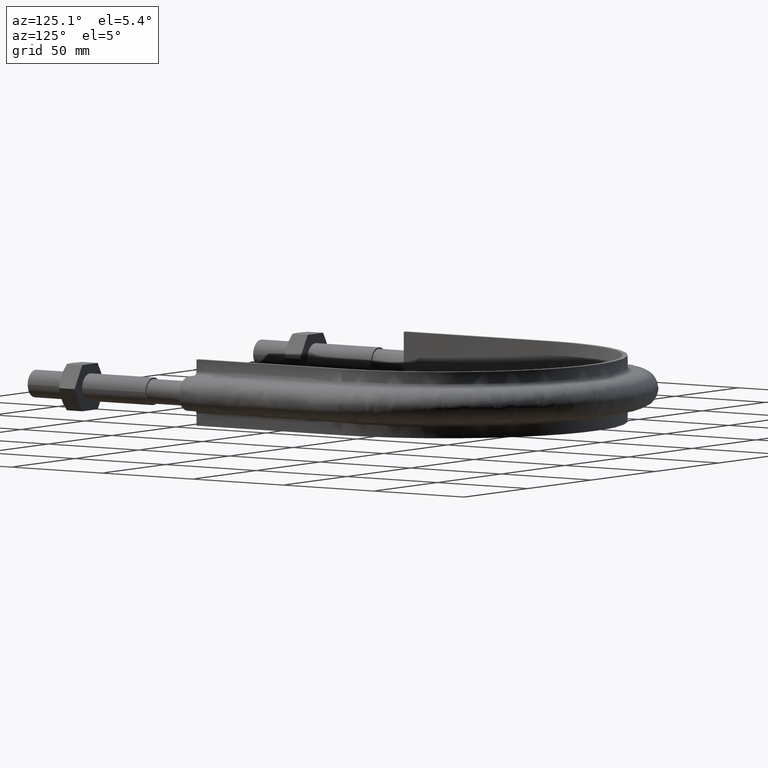
[diagram: clean part render]
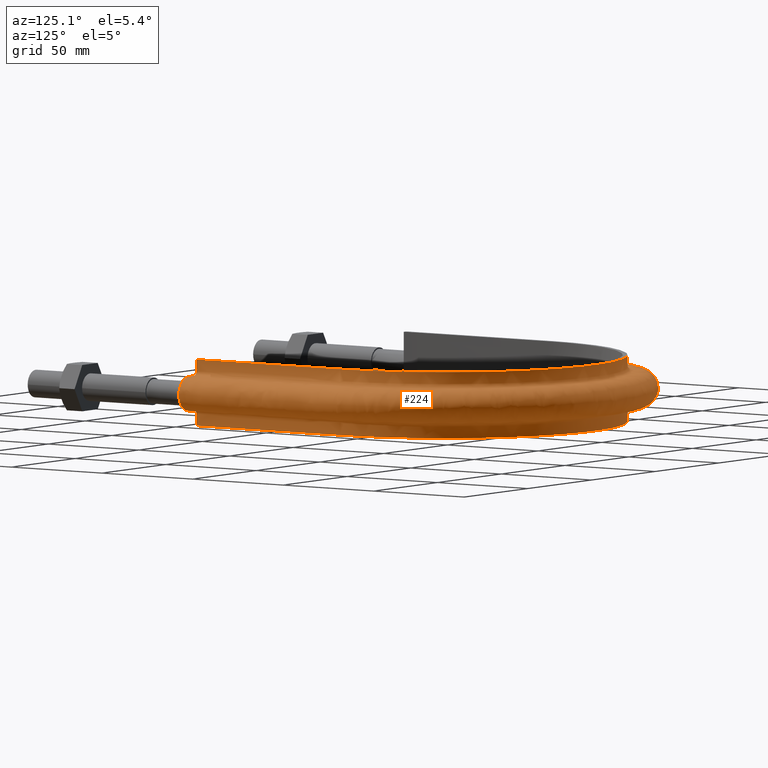
[diagram: same view with one face highlighted and labeled with its STEP entity id]
A machine part, auxiliary view. The second image highlights one B-rep face of the part: STEP entity #224.
In plain terms, the highlighted face is a freeform B-spline surface patch.
Its self-contained STEP definition (entity closure, byte-faithful):
#224 = ADVANCED_FACE( '', ( #272 ), #273, .F. );
#272 = FACE_OUTER_BOUND( '', #375, .T. );
#273 = B_SPLINE_SURFACE_WITH_KNOTS( '', 3, 3, ( ( #376, #377, #378, #379, #380, #381, #382, #383, #384, #385, #386, #387, #388, #389, #390, #391, #392, #393 ), ( #394, #395, #396, #397, #398, #399, #400, #401, #402, #403, #404, #405, #406, #407, #408, #409, #410, #411 ), ( #412, #413, #414, #415, #416, #417, #418, #419, #420, #421, #422, #423, #424, #425, #426, #427, #428, #429 ), ( #430, #431, #432, #433, #434, #435, #436, #437, #438, #439, #440, #441, #442, #443, #444, #445, #446, #447 ), ( #448, #449, #450, #451, #452, #453, #454, #455, #456, #457, #458, #459, #460, #461, #462, #463, #464, #465 ), ( #466, #467, #468, #469, #470, #471, #472, #473, #474, #475, #476, #477, #478, #479, #480, #481, #482, #483 ), ( #484, #485, #486, #487, #488, #489, #490, #491, #492, #493, #494, #495, #496, #497, #498, #499, #500, #501 ), ( #502, #503, #504, #505, #506, #507, #508, #509, #510, #511, #512, #513, #514, #515, #516, #517, #518, #519 ), ( #520, #521, #522, #523, #524, #525, #526, #527, #528, #529, #530, #531, #532, #533, #534, #535, #536, #537 ), ( #538, #539, #540, #541, #542, #543, #544, #545, #546, #547, #548, #549, #550, #551, #552, #553, #554, #555 ), ( #556, #557, #558, #559, #560, #561, #562, #563, #564, #565, #566, #567, #568, #569, #570, #571, #572, #573 ), ( #574, #575, #576, #577, #578, #579, #580, #581, #582, #583, #584, #585, #586, #587, #588, #589, #590, #591 ), ( #592, #593, #594, #595, #596, #597, #598, #599, #600, #601, #602, #603, #604, #605, #606, #607, #608, #609 ), ( #610, #611, #612, #613, #614, #615, #616, #617, #618, #619, #620, #621, #622, #623, #624, #625, #626, #627 ), ( #628, #629, #630, #631, #632, #633, #634, #635, #636, #637, #638, #639, #640, #641, #642, #643, #644, #645 ), ( #646, #647, #648, #649, #650, #651, #652, #653, #654, #655, #656, #657, #658, #659, #660, #661, #662, #663 ), ( #664, #665, #666, #667, #668, #669, #670, #671, #672, #673, #674, #675, #676, #677, #678, #679, #680, #681 ), ( #682, #683, #684, #685, #686, #687, #688, #689, #690, #691, #692, #693, #694, #695, #696, #697, #698, #699 ), ( #700, #701, #702, #703, #704, #705, #706, #707, #708, #709, #710, #711, #712, #713, #714, #715, #716, #717 ), ( #718, #719, #720, #721, #722, #723, #724, #725, #726, #727, #728, #729, #730, #731, #732, #733, #734, #735 ), ( #736, #737, #738, #739, #740, #741, #742, #743, #744, #745, #746, #747, #748, #749, #750, #751, #752, #753 ), ( #754, #755, #756, #757, #758, #759, #760, #761, #762, #763, #764, #765, #766, #767, #768, #769, #770, #771 ), ( #772, #773, #774, #775, #776, #777, #778, #779, #780, #781, #782, #783, #784, #785, #786, #787, #788, #789 ), ( #790, #791, #792, #793, #794, #795, #796, #797, #798, #799, #800, #801, #802, #803, #804, #805, #806, #807 ), ( #808, #809, #810, #811, #812, #813, #814, #815, #816, #817, #818, #819, #820, #821, #822, #823, #824, #825 ), ( #826, #827, #828, #829, #830, #831, #832, #833, #834, #835, #836, #837, #838, #839, #840, #841, #842, #843 ), ( #844, #845, #846, #847, #848, #849, #850, #851, #852, #853, #854, #855, #856, #857, #858, #859, #860, #861 ), ( #862, #863, #864, #865, #866, #867, #868, #869, #870, #871, #872, #873, #874, #875, #876, #877, #878, #879 ), ( #880, #881, #882, #883, #884, #885, #886, #887, #888, #889, #890, #891, #892, #893, #894, #895, #896, #897 ), ( #898, #899, #900, #901, #902, #903, #904, #905, #906, #907, #908, #909, #910, #911, #912, #913, #914, #915 ), ( #916, #917, #918, #919, #920, #921, #922, #923, #924, #925, #926, #927, #928, #929, #930, #931, #932, #933 ) ), .UNSPECIFIED., .F., .F., .F., ( 4, 3, 1, 1, 1, 3, 3, 1, 1, 1, 3, 3, 1, 1, 1, 3, 4 ), ( 4, 3, 1, 1, 1, 1, 1, 1, 1, 1, 3, 4 ), ( 0.105263157894737, 0.157894736842105, 0.210526315789474, 0.263157894736842, 0.315789473684211, 0.368421052631579, 0.421052631578947, 0.473684210526316, 0.526315789473684, 0.578947368421053, 0.631578947368421, 0.684210526315789, 0.736842105263158, 0.789473684210526, 0.842105263157895, 0.894736842105263, 0.947368421052632 ), ( 0.000000000000000, 1.00000000000000, 1.50000000000000, 2.00000000000000, 3.00000000000000, 4.00000000000000, 5.00000000000000, 6.00000000000000, 7.00000000000000, 7.50000000000000, 8.00000000000000, 9.00000000000000 ), .UNSPECIFIED. );
#375 = EDGE_LOOP( '', ( #1427, #1428, #1429, #1430 ) );
#376 = CARTESIAN_POINT( '', ( 82.4500000000000, 84.5000000000000, -15.0000000000000 ) );
#377 = CARTESIAN_POINT( '', ( 82.4500000000000, 110.920000000000, -15.0000000000000 ) );
#378 = CARTESIAN_POINT( '', ( 82.4500000000000, 137.340000000000, -15.0000000000000 ) );
#379 = CARTESIAN_POINT( '', ( 82.4500000000000, 163.760000000000, -15.0000000000000 ) );
#380 = CARTESIAN_POINT( '', ( 82.4500000000000, 169.917965282921, -15.0000000000000 ) );
#381 = CARTESIAN_POINT( '', ( 81.0415063471974, 182.260747551918, -15.0000000000000 ) );
#382 = CARTESIAN_POINT( '', ( 72.8782592641098, 205.697642595926, -15.0000000000000 ) );
#383 = CARTESIAN_POINT( '', ( 53.1613822653425, 230.423193230709, -15.0000000000000 ) );
#384 = CARTESIAN_POINT( '', ( 18.9732412542822, 246.886728985128, -15.0000000000000 ) );
#385 = CARTESIAN_POINT( '', ( -18.9732412542821, 246.886728985128, -15.0000000000000 ) );
#386 = CARTESIAN_POINT( '', ( -53.1613822653425, 230.423193230709, -15.0000000000000 ) );
#387 = CARTESIAN_POINT( '', ( -72.8782592641097, 205.697642595927, -15.0000000000000 ) );
#388 = CARTESIAN_POINT( '', ( -81.0415063471973, 182.260747551918, -15.0000000000000 ) );
#389 = CARTESIAN_POINT( '', ( -82.4500000000000, 169.917965282921, -15.0000000000000 ) );
#390 = CARTESIAN_POINT( '', ( -82.4500000000000, 163.760000000000, -15.0000000000000 ) );
#391 = CARTESIAN_POINT( '', ( -82.4500000000000, 137.340000000000, -15.0000000000000 ) );
#392 = CARTESIAN_POINT( '', ( -82.4500000000000, 110.920000000000, -15.0000000000000 ) );
#393 = CARTESIAN_POINT( '', ( -82.4500000000000, 84.5000000000001, -15.0000000000000 ) );
#394 = CARTESIAN_POINT( '', ( 82.4500000000000, 84.5000000000000, -13.2666666666667 ) );
#395 = CARTESIAN_POINT( '', ( 82.4500000000000, 110.920000000000, -13.2666666666667 ) );
#396 = CARTESIAN_POINT( '', ( 82.4500000000000, 137.340000000000, -13.2666666666667 ) );
#397 = CARTESIAN_POINT( '', ( 82.4500000000000, 163.760000000000, -13.2666666666667 ) );
#398 = CARTESIAN_POINT( '', ( 82.4500000000000, 169.917965282921, -13.2666666666667 ) );
#399 = CARTESIAN_POINT( '', ( 81.0415063471974, 182.260747551918, -13.2666666666667 ) );
#400 = CARTESIAN_POINT( '', ( 72.8782592641098, 205.697642595926, -13.2666666666667 ) );
#401 = CARTESIAN_POINT( '', ( 53.1613822653425, 230.423193230709, -13.2666666666667 ) );
#402 = CARTESIAN_POINT( '', ( 18.9732412542822, 246.886728985128, -13.2666666666667 ) );
#403 = CARTESIAN_POINT( '', ( -18.9732412542821, 246.886728985128, -13.2666666666667 ) );
#404 = CARTESIAN_POINT( '', ( -53.1613822653425, 230.423193230709, -13.2666666666667 ) );
#405 = CARTESIAN_POINT( '', ( -72.8782592641097, 205.697642595927, -13.2666666666667 ) );
#406 = CARTESIAN_POINT( '', ( -81.0415063471973, 182.260747551918, -13.2666666666667 ) );
#407 = CARTESIAN_POINT( '', ( -82.4500000000000, 169.917965282921, -13.2666666666667 ) );
#408 = CARTESIAN_POINT( '', ( -82.4500000000000, 163.760000000000, -13.2666666666667 ) );
#409 = CARTESIAN_POINT( '', ( -82.4500000000000, 137.340000000000, -13.2666666666667 ) );
#410 = CARTESIAN_POINT( '', ( -82.4500000000000, 110.920000000000, -13.2666666666667 ) );
#411 = CARTESIAN_POINT( '', ( -82.4500000000000, 84.5000000000001, -13.2666666666667 ) );
#412 = CARTESIAN_POINT( '', ( 82.4500000000000, 84.5000000000000, -11.5333333333333 ) );
#413 = CARTESIAN_POINT( '', ( 82.4500000000000, 110.920000000000, -11.5333333333333 ) );
#414 = CARTESIAN_POINT( '', ( 82.4500000000000, 137.340000000000, -11.5333333333333 ) );
#415 = CARTESIAN_POINT( '', ( 82.4500000000000, 163.760000000000, -11.5333333333333 ) );
#416 = CARTESIAN_POINT( '', ( 82.4500000000000, 169.917965282921, -11.5333333333333 ) );
#417 = CARTESIAN_POINT( '', ( 81.0415063471974, 182.260747551918, -11.5333333333333 ) );
#418 = CARTESIAN_POINT( '', ( 72.8782592641098, 205.697642595927, -11.5333333333334 ) );
#419 = CARTESIAN_POINT( '', ( 53.1613822653425, 230.423193230709, -11.5333333333333 ) );
#420 = CARTESIAN_POINT( '', ( 18.9732412542822, 246.886728985128, -11.5333333333333 ) );
#421 = CARTESIAN_POINT( '', ( -18.9732412542821, 246.886728985128, -11.5333333333333 ) );
#422 = CARTESIAN_POINT( '', ( -53.1613822653425, 230.423193230709, -11.5333333333333 ) );
#423 = CARTESIAN_POINT( '', ( -72.8782592641097, 205.697642595927, -11.5333333333333 ) );
#424 = CARTESIAN_POINT( '', ( -81.0415063471973, 182.260747551918, -11.5333333333333 ) );
#425 = CARTESIAN_POINT( '', ( -82.4500000000000, 169.917965282921, -11.5333333333333 ) );
#426 = CARTESIAN_POINT( '', ( -82.4500000000000, 163.760000000000, -11.5333333333333 ) );
#427 = CARTESIAN_POINT( '', ( -82.4500000000000, 137.340000000000, -11.5333333333333 ) );
#428 = CARTESIAN_POINT( '', ( -82.4500000000000, 110.920000000000, -11.5333333333333 ) );
#429 = CARTESIAN_POINT( '', ( -82.4500000000000, 84.5000000000001, -11.5333333333333 ) );
#430 = CARTESIAN_POINT( '', ( 82.4500000000000, 84.5000000000000, -9.79999999999999 ) );
#431 = CARTESIAN_POINT( '', ( 82.4500000000000, 110.920000000000, -9.79999999999999 ) );
#432 = CARTESIAN_POINT( '', ( 82.4500000000000, 137.340000000000, -9.79999999999999 ) );
#433 = CARTESIAN_POINT( '', ( 82.4500000000000, 163.760000000000, -9.79999999999999 ) );
#434 = CARTESIAN_POINT( '', ( 82.4500000000000, 169.917965282921, -9.79999999999999 ) );
#435 = CARTESIAN_POINT( '', ( 81.0415063471974, 182.260747551918, -9.79999999999999 ) );
#436 = CARTESIAN_POINT( '', ( 72.8782592641098, 205.697642595927, -9.80000000000001 ) );
#437 = CARTESIAN_POINT( '', ( 53.1613822653425, 230.423193230709, -9.79999999999998 ) );
#438 = CARTESIAN_POINT( '', ( 18.9732412542822, 246.886728985128, -9.79999999999999 ) );
#439 = CARTESIAN_POINT( '', ( -18.9732412542821, 246.886728985128, -9.80000000000000 ) );
#440 = CARTESIAN_POINT( '', ( -53.1613822653425, 230.423193230709, -9.79999999999999 ) );
#441 = CARTESIAN_POINT( '', ( -72.8782592641097, 205.697642595927, -9.79999999999999 ) );
#442 = CARTESIAN_POINT( '', ( -81.0415063471973, 182.260747551918, -9.79999999999999 ) );
#443 = CARTESIAN_POINT( '', ( -82.4500000000000, 169.917965282921, -9.79999999999999 ) );
#444 = CARTESIAN_POINT( '', ( -82.4500000000000, 163.760000000000, -9.79999999999999 ) );
#445 = CARTESIAN_POINT( '', ( -82.4500000000000, 137.340000000000, -9.79999999999999 ) );
#446 = CARTESIAN_POINT( '', ( -82.4500000000000, 110.920000000000, -9.79999999999999 ) );
#447 = CARTESIAN_POINT( '', ( -82.4500000000000, 84.5000000000001, -9.79999999999999 ) );
#448 = CARTESIAN_POINT( '', ( 82.4500000000000, 84.5000000000000, -9.53823584172332 ) );
#449 = CARTESIAN_POINT( '', ( 82.4500000000000, 110.920000000000, -9.53823584172332 ) );
#450 = CARTESIAN_POINT( '', ( 82.4500000000000, 137.340000000000, -9.53823584172332 ) );
#451 = CARTESIAN_POINT( '', ( 82.4500000000000, 163.760000000000, -9.53823584172332 ) );
#452 = CARTESIAN_POINT( '', ( 82.4500000000000, 169.917965282921, -9.53823584172332 ) );
#453 = CARTESIAN_POINT( '', ( 81.0415063471974, 182.260747551918, -9.53823584172332 ) );
#454 = CARTESIAN_POINT( '', ( 72.8782592641098, 205.697642595926, -9.53823584172334 ) );
#455 = CARTESIAN_POINT( '', ( 53.1613822653425, 230.423193230709, -9.53823584172331 ) );
#456 = CARTESIAN_POINT( '', ( 18.9732412542822, 246.886728985128, -9.53823584172333 ) );
#457 = CARTESIAN_POINT( '', ( -18.9732412542821, 246.886728985128, -9.53823584172333 ) );
#458 = CARTESIAN_POINT( '', ( -53.1613822653425, 230.423193230709, -9.53823584172332 ) );
#459 = CARTESIAN_POINT( '', ( -72.8782592641097, 205.697642595927, -9.53823584172332 ) );
#460 = CARTESIAN_POINT( '', ( -81.0415063471973, 182.260747551918, -9.53823584172332 ) );
#461 = CARTESIAN_POINT( '', ( -82.4500000000000, 169.917965282921, -9.53823584172332 ) );
#462 = CARTESIAN_POINT( '', ( -82.4500000000000, 163.760000000000, -9.53823584172332 ) );
#463 = CARTESIAN_POINT( '', ( -82.4500000000000, 137.340000000000, -9.53823584172332 ) );
#464 = CARTESIAN_POINT( '', ( -82.4500000000000, 110.920000000000, -9.53823584172332 ) );
#465 = CARTESIAN_POINT( '', ( -82.4500000000000, 84.5000000000001, -9.53823584172332 ) );
#466 = CARTESIAN_POINT( '', ( 82.5541362568359, 84.5000000000000, -9.01470752517000 ) );
#467 = CARTESIAN_POINT( '', ( 82.5541362568359, 110.920000000000, -9.01470752517000 ) );
#468 = CARTESIAN_POINT( '', ( 82.5541362568359, 137.340000000000, -9.01470752517000 ) );
#469 = CARTESIAN_POINT( '', ( 82.5541362568359, 163.760000000000, -9.01470752517000 ) );
#470 = CARTESIAN_POINT( '', ( 82.5541362568359, 169.925888089944, -9.01470752517000 ) );
#471 = CARTESIAN_POINT( '', ( 81.1438855386676, 182.284053785244, -9.01470752516999 ) );
#472 = CARTESIAN_POINT( '', ( 72.9702935407622, 205.750645792291, -9.01470752517001 ) );
#473 = CARTESIAN_POINT( '', ( 53.2285306995549, 230.507378724202, -9.01470752516999 ) );
#474 = CARTESIAN_POINT( '', ( 18.9972034371378, 246.991722298581, -9.01470752517000 ) );
#475 = CARTESIAN_POINT( '', ( -18.9972034371376, 246.991722298581, -9.01470752517000 ) );
#476 = CARTESIAN_POINT( '', ( -53.2285306995549, 230.507378724202, -9.01470752516999 ) );
#477 = CARTESIAN_POINT( '', ( -72.9702935407621, 205.750645792292, -9.01470752516999 ) );
#478 = CARTESIAN_POINT( '', ( -81.1438855386676, 182.284053785244, -9.01470752517000 ) );
#479 = CARTESIAN_POINT( '', ( -82.5541362568359, 169.925888089944, -9.01470752517000 ) );
#480 = CARTESIAN_POINT( '', ( -82.5541362568359, 163.760000000000, -9.01470752517000 ) );
#481 = CARTESIAN_POINT( '', ( -82.5541362568359, 137.340000000000, -9.01470752517000 ) );
#482 = CARTESIAN_POINT( '', ( -82.5541362568359, 110.920000000000, -9.01470752517000 ) );
#483 = CARTESIAN_POINT( '', ( -82.5541362568359, 84.5000000000001, -9.01470752517000 ) );
#484 = CARTESIAN_POINT( '', ( 82.9989687109389, 84.5000000000000, -8.34896871093886 ) );
#485 = CARTESIAN_POINT( '', ( 82.9989687109389, 110.920000000000, -8.34896871093886 ) );
#486 = CARTESIAN_POINT( '', ( 82.9989687109389, 137.340000000000, -8.34896871093886 ) );
#487 = CARTESIAN_POINT( '', ( 82.9989687109389, 163.760000000000, -8.34896871093886 ) );
#488 = CARTESIAN_POINT( '', ( 82.9989687109389, 169.959731458226, -8.34896871093886 ) );
#489 = CARTESIAN_POINT( '', ( 81.5812124445365, 182.383609591080, -8.34896871093886 ) );
#490 = CARTESIAN_POINT( '', ( 73.3634307092068, 205.977056291677, -8.34896871093888 ) );
#491 = CARTESIAN_POINT( '', ( 53.5153645429006, 230.866988727559, -8.34896871093885 ) );
#492 = CARTESIAN_POINT( '', ( 19.0995612223047, 247.440215788808, -8.34896871093886 ) );
#493 = CARTESIAN_POINT( '', ( -19.0995612223046, 247.440215788808, -8.34896871093886 ) );
#494 = CARTESIAN_POINT( '', ( -53.5153645429006, 230.866988727559, -8.34896871093886 ) );
#495 = CARTESIAN_POINT( '', ( -73.3634307092067, 205.977056291677, -8.34896871093886 ) );
#496 = CARTESIAN_POINT( '', ( -81.5812124445364, 182.383609591080, -8.34896871093886 ) );
#497 = CARTESIAN_POINT( '', ( -82.9989687109388, 169.959731458226, -8.34896871093886 ) );
#498 = CARTESIAN_POINT( '', ( -82.9989687109388, 163.760000000000, -8.34896871093886 ) );
#499 = CARTESIAN_POINT( '', ( -82.9989687109388, 137.340000000000, -8.34896871093886 ) );
#500 = CARTESIAN_POINT( '', ( -82.9989687109388, 110.920000000000, -8.34896871093886 ) );
#501 = CARTESIAN_POINT( '', ( -82.9989687109388, 84.5000000000001, -8.34896871093886 ) );
#502 = CARTESIAN_POINT( '', ( 83.6647075251700, 84.5000000000000, -7.90413625683589 ) );
#503 = CARTESIAN_POINT( '', ( 83.6647075251700, 110.920000000000, -7.90413625683589 ) );
#504 = CARTESIAN_POINT( '', ( 83.6647075251700, 137.340000000000, -7.90413625683589 ) );
#505 = CARTESIAN_POINT( '', ( 83.6647075251700, 163.760000000000, -7.90413625683589 ) );
#506 = CARTESIAN_POINT( '', ( 83.6647075251700, 170.010381638225, -7.90413625683589 ) );
#507 = CARTESIAN_POINT( '', ( 82.2357184120284, 182.532605383800, -7.90413625683589 ) );
#508 = CARTESIAN_POINT( '', ( 73.9518020610190, 206.315903549785, -7.90413625683591 ) );
#509 = CARTESIAN_POINT( '', ( 53.9446417257792, 231.405183130896, -7.90413625683589 ) );
#510 = CARTESIAN_POINT( '', ( 19.2527504734392, 248.111433730801, -7.90413625683590 ) );
#511 = CARTESIAN_POINT( '', ( -19.2527504734390, 248.111433730801, -7.90413625683590 ) );
#512 = CARTESIAN_POINT( '', ( -53.9446417257792, 231.405183130896, -7.90413625683589 ) );
#513 = CARTESIAN_POINT( '', ( -73.9518020610189, 206.315903549785, -7.90413625683589 ) );
#514 = CARTESIAN_POINT( '', ( -82.2357184120283, 182.532605383800, -7.90413625683590 ) );
#515 = CARTESIAN_POINT( '', ( -83.6647075251700, 170.010381638225, -7.90413625683589 ) );
#516 = CARTESIAN_POINT( '', ( -83.6647075251700, 163.760000000000, -7.90413625683589 ) );
#517 = CARTESIAN_POINT( '', ( -83.6647075251700, 137.340000000000, -7.90413625683589 ) );
#518 = CARTESIAN_POINT( '', ( -83.6647075251700, 110.920000000000, -7.90413625683589 ) );
#519 = CARTESIAN_POINT( '', ( -83.6647075251700, 84.5000000000001, -7.90413625683589 ) );
#520 = CARTESIAN_POINT( '', ( 84.1882358417233, 84.5000000000000, -7.79999999999998 ) );
#521 = CARTESIAN_POINT( '', ( 84.1882358417233, 110.920000000000, -7.79999999999998 ) );
#522 = CARTESIAN_POINT( '', ( 84.1882358417233, 137.340000000000, -7.79999999999998 ) );
#523 = CARTESIAN_POINT( '', ( 84.1882358417233, 163.760000000000, -7.79999999999998 ) );
#524 = CARTESIAN_POINT( '', ( 84.1882358417234, 170.050212278863, -7.79999999999998 ) );
#525 = CARTESIAN_POINT( '', ( 82.7504133644789, 182.649773731010, -7.79999999999998 ) );
#526 = CARTESIAN_POINT( '', ( 74.4144896146629, 206.582368612080, -7.80000000000000 ) );
#527 = CARTESIAN_POINT( '', ( 54.2822197009296, 231.828412186997, -7.79999999999997 ) );
#528 = CARTESIAN_POINT( '', ( 19.3732165016264, 248.639270761931, -7.79999999999999 ) );
#529 = CARTESIAN_POINT( '', ( -19.3732165016263, 248.639270761931, -7.79999999999999 ) );
#530 = CARTESIAN_POINT( '', ( -54.2822197009296, 231.828412186997, -7.79999999999999 ) );
#531 = CARTESIAN_POINT( '', ( -74.4144896146628, 206.582368612080, -7.79999999999998 ) );
#532 = CARTESIAN_POINT( '', ( -82.7504133644789, 182.649773731010, -7.79999999999998 ) );
#533 = CARTESIAN_POINT( '', ( -84.1882358417233, 170.050212278863, -7.79999999999998 ) );
#534 = CARTESIAN_POINT( '', ( -84.1882358417233, 163.760000000000, -7.79999999999998 ) );
#535 = CARTESIAN_POINT( '', ( -84.1882358417233, 137.340000000000, -7.79999999999998 ) );
#536 = CARTESIAN_POINT( '', ( -84.1882358417233, 110.920000000000, -7.79999999999998 ) );
#537 = CARTESIAN_POINT( '', ( -84.1882358417233, 84.5000000000001, -7.79999999999998 ) );
#538 = CARTESIAN_POINT( '', ( 84.4500000000000, 84.5000000000000, -7.79999999999998 ) );
#539 = CARTESIAN_POINT( '', ( 84.4500000000000, 110.920000000000, -7.79999999999998 ) );
#540 = CARTESIAN_POINT( '', ( 84.4500000000000, 137.340000000000, -7.79999999999998 ) );
#541 = CARTESIAN_POINT( '', ( 84.4500000000000, 163.760000000000, -7.79999999999998 ) );
#542 = CARTESIAN_POINT( '', ( 84.4500000000000, 170.070127599181, -7.79999999999998 ) );
#543 = CARTESIAN_POINT( '', ( 83.0077608407042, 182.708357904614, -7.79999999999998 ) );
#544 = CARTESIAN_POINT( '', ( 74.6458333914849, 206.715601143227, -7.80000000000000 ) );
#545 = CARTESIAN_POINT( '', ( 54.4510086885049, 232.040026715048, -7.79999999999997 ) );
#546 = CARTESIAN_POINT( '', ( 19.4334495157200, 248.903189277496, -7.79999999999999 ) );
#547 = CARTESIAN_POINT( '', ( -19.4334495157199, 248.903189277496, -7.79999999999999 ) );
#548 = CARTESIAN_POINT( '', ( -54.4510086885048, 232.040026715048, -7.79999999999998 ) );
#549 = CARTESIAN_POINT( '', ( -74.6458333914848, 206.715601143227, -7.79999999999998 ) );
#550 = CARTESIAN_POINT( '', ( -83.0077608407041, 182.708357904614, -7.79999999999998 ) );
#551 = CARTESIAN_POINT( '', ( -84.4500000000000, 170.070127599181, -7.79999999999998 ) );
#552 = CARTESIAN_POINT( '', ( -84.4500000000000, 163.760000000000, -7.79999999999998 ) );
#553 = CARTESIAN_POINT( '', ( -84.4500000000000, 137.340000000000, -7.79999999999998 ) );
#554 = CARTESIAN_POINT( '', ( -84.4500000000000, 110.920000000000, -7.79999999999998 ) );
#555 = CARTESIAN_POINT( '', ( -84.4500000000000, 84.5000000000001, -7.79999999999998 ) );
#556 = CARTESIAN_POINT( '', ( 85.8000000000000, 84.5000000000000, -7.79999999999999 ) );
#557 = CARTESIAN_POINT( '', ( 85.8000000000000, 110.920000000000, -7.79999999999999 ) );
#558 = CARTESIAN_POINT( '', ( 85.8000000000000, 137.340000000000, -7.79999999999999 ) );
#559 = CARTESIAN_POINT( '', ( 85.8000000000000, 163.760000000000, -7.79999999999999 ) );
#560 = CARTESIAN_POINT( '', ( 85.8000000000000, 170.172837162657, -7.79999999999999 ) );
#561 = CARTESIAN_POINT( '', ( 84.3349826238213, 183.010494892684, -7.79999999999999 ) );
#562 = CARTESIAN_POINT( '', ( 75.8389459274631, 207.402723162656, -7.80000000000001 ) );
#563 = CARTESIAN_POINT( '', ( 55.3215065241394, 233.131389316976, -7.79999999999998 ) );
#564 = CARTESIAN_POINT( '', ( 19.7440900921906, 250.264299974845, -7.79999999999999 ) );
#565 = CARTESIAN_POINT( '', ( -19.7440900921904, 250.264299974845, -7.80000000000000 ) );
#566 = CARTESIAN_POINT( '', ( -55.3215065241394, 233.131389316976, -7.79999999999999 ) );
#567 = CARTESIAN_POINT( '', ( -75.8389459274630, 207.402723162656, -7.79999999999999 ) );
#568 = CARTESIAN_POINT( '', ( -84.3349826238212, 183.010494892684, -7.79999999999999 ) );
#569 = CARTESIAN_POINT( '', ( -85.8000000000000, 170.172837162657, -7.79999999999999 ) );
#570 = CARTESIAN_POINT( '', ( -85.8000000000000, 163.760000000000, -7.79999999999999 ) );
#571 = CARTESIAN_POINT( '', ( -85.8000000000000, 137.340000000000, -7.79999999999999 ) );
#572 = CARTESIAN_POINT( '', ( -85.8000000000000, 110.920000000000, -7.79999999999999 ) );
#573 = CARTESIAN_POINT( '', ( -85.8000000000000, 84.5000000000001, -7.79999999999999 ) );
#574 = CARTESIAN_POINT( '', ( 87.1500000000000, 84.5000000000000, -7.79999999999999 ) );
#575 = CARTESIAN_POINT( '', ( 87.1500000000000, 110.920000000000, -7.79999999999999 ) );
#576 = CARTESIAN_POINT( '', ( 87.1500000000000, 137.340000000000, -7.79999999999999 ) );
#577 = CARTESIAN_POINT( '', ( 87.1500000000000, 163.760000000000, -7.79999999999999 ) );
#578 = CARTESIAN_POINT( '', ( 87.1500000000000, 170.275546726132, -7.79999999999999 ) );
#579 = CARTESIAN_POINT( '', ( 85.6622044069384, 183.312631880754, -7.79999999999999 ) );
#580 = CARTESIAN_POINT( '', ( 77.0320584634413, 208.089845182084, -7.80000000000001 ) );
#581 = CARTESIAN_POINT( '', ( 56.1920043597740, 234.222751918905, -7.79999999999998 ) );
#582 = CARTESIAN_POINT( '', ( 20.0547306686611, 251.625410672194, -7.79999999999999 ) );
#583 = CARTESIAN_POINT( '', ( -20.0547306686609, 251.625410672194, -7.80000000000000 ) );
#584 = CARTESIAN_POINT( '', ( -56.1920043597740, 234.222751918905, -7.79999999999999 ) );
#585 = CARTESIAN_POINT( '', ( -77.0320584634412, 208.089845182084, -7.79999999999999 ) );
#586 = CARTESIAN_POINT( '', ( -85.6622044069383, 183.312631880754, -7.79999999999999 ) );
#587 = CARTESIAN_POINT( '', ( -87.1499999999999, 170.275546726132, -7.79999999999999 ) );
#588 = CARTESIAN_POINT( '', ( -87.1500000000000, 163.760000000000, -7.79999999999999 ) );
#589 = CARTESIAN_POINT( '', ( -87.1499999999999, 137.340000000000, -7.79999999999999 ) );
#590 = CARTESIAN_POINT( '', ( -87.1499999999999, 110.920000000000, -7.79999999999999 ) );
#591 = CARTESIAN_POINT( '', ( -87.1499999999999, 84.5000000000001, -7.79999999999999 ) );
#592 = CARTESIAN_POINT( '', ( 88.5000000000000, 84.5000000000000, -7.79999999999999 ) );
#593 = CARTESIAN_POINT( '', ( 88.5000000000000, 110.920000000000, -7.79999999999999 ) );
#594 = CARTESIAN_POINT( '', ( 88.5000000000000, 137.340000000000, -7.79999999999999 ) );
#595 = CARTESIAN_POINT( '', ( 88.5000000000000, 163.760000000000, -7.79999999999999 ) );
#596 = CARTESIAN_POINT( '', ( 88.5000000000000, 170.378256289608, -7.79999999999999 ) );
#597 = CARTESIAN_POINT( '', ( 86.9894261900555, 183.614768868824, -7.79999999999999 ) );
#598 = CARTESIAN_POINT( '', ( 78.2251709994195, 208.776967201512, -7.80000000000001 ) );
#599 = CARTESIAN_POINT( '', ( 57.0625021954086, 235.314114520833, -7.79999999999998 ) );
#600 = CARTESIAN_POINT( '', ( 20.3653712451316, 252.986521369543, -7.79999999999999 ) );
#601 = CARTESIAN_POINT( '', ( -20.3653712451315, 252.986521369543, -7.80000000000000 ) );
#602 = CARTESIAN_POINT( '', ( -57.0625021954085, 235.314114520833, -7.79999999999999 ) );
#603 = CARTESIAN_POINT( '', ( -78.2251709994195, 208.776967201512, -7.79999999999999 ) );
#604 = CARTESIAN_POINT( '', ( -86.9894261900554, 183.614768868824, -7.79999999999999 ) );
#605 = CARTESIAN_POINT( '', ( -88.5000000000000, 170.378256289608, -7.79999999999999 ) );
#606 = CARTESIAN_POINT( '', ( -88.5000000000000, 163.760000000000, -7.79999999999999 ) );
#607 = CARTESIAN_POINT( '', ( -88.5000000000000, 137.340000000000, -7.79999999999999 ) );
#608 = CARTESIAN_POINT( '', ( -88.5000000000000, 110.920000000000, -7.79999999999999 ) );
#609 = CARTESIAN_POINT( '', ( -88.5000000000000, 84.5000000000001, -7.79999999999999 ) );
#610 = CARTESIAN_POINT( '', ( 90.5373902247172, 84.5000000000000, -7.79999999999998 ) );
#611 = CARTESIAN_POINT( '', ( 90.5373902247172, 110.920000000000, -7.79999999999998 ) );
#612 = CARTESIAN_POINT( '', ( 90.5373902247172, 137.340000000000, -7.79999999999998 ) );
#613 = CARTESIAN_POINT( '', ( 90.5373902247172, 163.760000000000, -7.79999999999998 ) );
#614 = CARTESIAN_POINT( '', ( 90.5373902247172, 170.533263297467, -7.79999999999998 ) );
#615 = CARTESIAN_POINT( '', ( 88.9924400322439, 184.070747347356, -7.79999999999998 ) );
#616 = CARTESIAN_POINT( '', ( 80.0257901237081, 209.813956598231, -7.80000000000000 ) );
#617 = CARTESIAN_POINT( '', ( 58.3762383294525, 236.961174888827, -7.79999999999997 ) );
#618 = CARTESIAN_POINT( '', ( 20.8341831517253, 255.040679613644, -7.79999999999999 ) );
#619 = CARTESIAN_POINT( '', ( -20.8341831517252, 255.040679613644, -7.79999999999999 ) );
#620 = CARTESIAN_POINT( '', ( -58.3762383294525, 236.961174888827, -7.79999999999999 ) );
#621 = CARTESIAN_POINT( '', ( -80.0257901237080, 209.813956598231, -7.79999999999998 ) );
#622 = CARTESIAN_POINT( '', ( -88.9924400322439, 184.070747347356, -7.79999999999998 ) );
#623 = CARTESIAN_POINT( '', ( -90.5373902247171, 170.533263297467, -7.79999999999998 ) );
#624 = CARTESIAN_POINT( '', ( -90.5373902247171, 163.760000000000, -7.79999999999998 ) );
#625 = CARTESIAN_POINT( '', ( -90.5373902247171, 137.340000000000, -7.79999999999998 ) );
#626 = CARTESIAN_POINT( '', ( -90.5373902247171, 110.920000000000, -7.79999999999998 ) );
#627 = CARTESIAN_POINT( '', ( -90.5373902247171, 84.5000000000001, -7.79999999999998 ) );
#628 = CARTESIAN_POINT( '', ( 94.6121706741515, 84.5000000000000, -6.11217067415154 ) );
#629 = CARTESIAN_POINT( '', ( 94.6121706741515, 110.920000000000, -6.11217067415154 ) );
#630 = CARTESIAN_POINT( '', ( 94.6121706741515, 137.340000000000, -6.11217067415154 ) );
#631 = CARTESIAN_POINT( '', ( 94.6121706741515, 163.760000000000, -6.11217067415154 ) );
#632 = CARTESIAN_POINT( '', ( 94.6121706741516, 170.843277313186, -6.11217067415154 ) );
#633 = CARTESIAN_POINT( '', ( 92.9984677166210, 184.982704304421, -6.11217067415154 ) );
#634 = CARTESIAN_POINT( '', ( 83.6270283722852, 211.887935391669, -6.11217067415155 ) );
#635 = CARTESIAN_POINT( '', ( 61.0037105975404, 240.255295624814, -6.11217067415153 ) );
#636 = CARTESIAN_POINT( '', ( 21.7718069649128, 259.148996101846, -6.11217067415154 ) );
#637 = CARTESIAN_POINT( '', ( -21.7718069649127, 259.148996101846, -6.11217067415154 ) );
#638 = CARTESIAN_POINT( '', ( -61.0037105975404, 240.255295624814, -6.11217067415154 ) );
#639 = CARTESIAN_POINT( '', ( -83.6270283722852, 211.887935391669, -6.11217067415154 ) );
#640 = CARTESIAN_POINT( '', ( -92.9984677166209, 184.982704304421, -6.11217067415154 ) );
#641 = CARTESIAN_POINT( '', ( -94.6121706741515, 170.843277313186, -6.11217067415154 ) );
#642 = CARTESIAN_POINT( '', ( -94.6121706741515, 163.760000000000, -6.11217067415154 ) );
#643 = CARTESIAN_POINT( '', ( -94.6121706741515, 137.340000000000, -6.11217067415154 ) );
#644 = CARTESIAN_POINT( '', ( -94.6121706741515, 110.920000000000, -6.11217067415154 ) );
#645 = CARTESIAN_POINT( '', ( -94.6121706741515, 84.5000000000001, -6.11217067415154 ) );
#646 = CARTESIAN_POINT( '', ( 97.1439146629242, 84.5000000000000, -1.05853928181154E-015 ) );
#647 = CARTESIAN_POINT( '', ( 97.1439146629242, 110.920000000000, -1.05853928181154E-015 ) );
#648 = CARTESIAN_POINT( '', ( 97.1439146629242, 137.340000000000, -1.05853928181154E-015 ) );
#649 = CARTESIAN_POINT( '', ( 97.1439146629242, 163.760000000000, -1.05853928181154E-015 ) );
#650 = CARTESIAN_POINT( '', ( 97.1439146629242, 171.035895327940, -1.05853928181154E-015 ) );
#651 = CARTESIAN_POINT( '', ( 95.4874942137875, 185.549321714297, -1.05853928181154E-015 ) );
#652 = CARTESIAN_POINT( '', ( 85.8645509581312, 213.176540608143, -1.05853928181154E-015 ) );
#653 = CARTESIAN_POINT( '', ( 62.6362125698422, 242.301999852224, -1.05853928181154E-015 ) );
#654 = CARTESIAN_POINT( '', ( 22.3543717146522, 261.701576713748, -1.05853928181154E-015 ) );
#655 = CARTESIAN_POINT( '', ( -22.3543717146521, 261.701576713748, -1.05853928181154E-015 ) );
#656 = CARTESIAN_POINT( '', ( -62.6362125698422, 242.301999852224, -1.05853928181154E-015 ) );
#657 = CARTESIAN_POINT( '', ( -85.8645509581311, 213.176540608143, -1.05853928181154E-015 ) );
#658 = CARTESIAN_POINT( '', ( -95.4874942137875, 185.549321714297, -1.05853928181154E-015 ) );
#659 = CARTESIAN_POINT( '', ( -97.1439146629242, 171.035895327940, -1.05853928181154E-015 ) );
#660 = CARTESIAN_POINT( '', ( -97.1439146629242, 163.760000000000, -1.05853928181154E-015 ) );
#661 = CARTESIAN_POINT( '', ( -97.1439146629242, 137.340000000000, -1.05853928181154E-015 ) );
#662 = CARTESIAN_POINT( '', ( -97.1439146629242, 110.920000000000, -1.05853928181154E-015 ) );
#663 = CARTESIAN_POINT( '', ( -97.1439146629242, 84.5000000000001, -1.05853928181154E-015 ) );
#664 = CARTESIAN_POINT( '', ( 94.6121706741515, 84.5000000000000, 6.11217067415154 ) );
#665 = CARTESIAN_POINT( '', ( 94.6121706741515, 110.920000000000, 6.11217067415154 ) );
#666 = CARTESIAN_POINT( '', ( 94.6121706741515, 137.340000000000, 6.11217067415154 ) );
#667 = CARTESIAN_POINT( '', ( 94.6121706741515, 163.760000000000, 6.11217067415154 ) );
#668 = CARTESIAN_POINT( '', ( 94.6121706741516, 170.843277313186, 6.11217067415154 ) );
#669 = CARTESIAN_POINT( '', ( 92.9984677166210, 184.982704304421, 6.11217067415154 ) );
#670 = CARTESIAN_POINT( '', ( 83.6270283722852, 211.887935391669, 6.11217067415155 ) );
#671 = CARTESIAN_POINT( '', ( 61.0037105975404, 240.255295624814, 6.11217067415153 ) );
#672 = CARTESIAN_POINT( '', ( 21.7718069649128, 259.148996101846, 6.11217067415154 ) );
#673 = CARTESIAN_POINT( '', ( -21.7718069649127, 259.148996101846, 6.11217067415154 ) );
#674 = CARTESIAN_POINT( '', ( -61.0037105975404, 240.255295624814, 6.11217067415154 ) );
#675 = CARTESIAN_POINT( '', ( -83.6270283722852, 211.887935391669, 6.11217067415154 ) );
#676 = CARTESIAN_POINT( '', ( -92.9984677166209, 184.982704304421, 6.11217067415154 ) );
#677 = CARTESIAN_POINT( '', ( -94.6121706741515, 170.843277313186, 6.11217067415154 ) );
#678 = CARTESIAN_POINT( '', ( -94.6121706741515, 163.760000000000, 6.11217067415154 ) );
#679 = CARTESIAN_POINT( '', ( -94.6121706741515, 137.340000000000, 6.11217067415154 ) );
#680 = CARTESIAN_POINT( '', ( -94.6121706741515, 110.920000000000, 6.11217067415154 ) );
#681 = CARTESIAN_POINT( '', ( -94.6121706741515, 84.5000000000001, 6.11217067415154 ) );
#682 = CARTESIAN_POINT( '', ( 90.5373902247172, 84.5000000000000, 7.79999999999998 ) );
#683 = CARTESIAN_POINT( '', ( 90.5373902247172, 110.920000000000, 7.79999999999998 ) );
#684 = CARTESIAN_POINT( '', ( 90.5373902247172, 137.340000000000, 7.79999999999998 ) );
#685 = CARTESIAN_POINT( '', ( 90.5373902247172, 163.760000000000, 7.79999999999998 ) );
#686 = CARTESIAN_POINT( '', ( 90.5373902247172, 170.533263297467, 7.79999999999998 ) );
#687 = CARTESIAN_POINT( '', ( 88.9924400322439, 184.070747347356, 7.79999999999998 ) );
#688 = CARTESIAN_POINT( '', ( 80.0257901237081, 209.813956598231, 7.80000000000000 ) );
#689 = CARTESIAN_POINT( '', ( 58.3762383294525, 236.961174888827, 7.79999999999997 ) );
#690 = CARTESIAN_POINT( '', ( 20.8341831517253, 255.040679613644, 7.79999999999999 ) );
#691 = CARTESIAN_POINT( '', ( -20.8341831517252, 255.040679613644, 7.79999999999999 ) );
#692 = CARTESIAN_POINT( '', ( -58.3762383294525, 236.961174888827, 7.79999999999998 ) );
#693 = CARTESIAN_POINT( '', ( -80.0257901237080, 209.813956598231, 7.79999999999998 ) );
#694 = CARTESIAN_POINT( '', ( -88.9924400322439, 184.070747347356, 7.79999999999998 ) );
#695 = CARTESIAN_POINT( '', ( -90.5373902247171, 170.533263297467, 7.79999999999998 ) );
#696 = CARTESIAN_POINT( '', ( -90.5373902247171, 163.760000000000, 7.79999999999998 ) );
#697 = CARTESIAN_POINT( '', ( -90.5373902247171, 137.340000000000, 7.79999999999998 ) );
#698 = CARTESIAN_POINT( '', ( -90.5373902247171, 110.920000000000, 7.79999999999998 ) );
#699 = CARTESIAN_POINT( '', ( -90.5373902247171, 84.5000000000001, 7.79999999999998 ) );
#700 = CARTESIAN_POINT( '', ( 88.5000000000000, 84.5000000000000, 7.79999999999998 ) );
#701 = CARTESIAN_POINT( '', ( 88.5000000000000, 110.920000000000, 7.79999999999998 ) );
#702 = CARTESIAN_POINT( '', ( 88.5000000000000, 137.340000000000, 7.79999999999998 ) );
#703 = CARTESIAN_POINT( '', ( 88.5000000000000, 163.760000000000, 7.79999999999998 ) );
#704 = CARTESIAN_POINT( '', ( 88.5000000000000, 170.378256289608, 7.79999999999998 ) );
#705 = CARTESIAN_POINT( '', ( 86.9894261900555, 183.614768868824, 7.79999999999998 ) );
#706 = CARTESIAN_POINT( '', ( 78.2251709994195, 208.776967201512, 7.80000000000000 ) );
#707 = CARTESIAN_POINT( '', ( 57.0625021954086, 235.314114520833, 7.79999999999997 ) );
#708 = CARTESIAN_POINT( '', ( 20.3653712451316, 252.986521369543, 7.79999999999999 ) );
#709 = CARTESIAN_POINT( '', ( -20.3653712451315, 252.986521369543, 7.79999999999999 ) );
#710 = CARTESIAN_POINT( '', ( -57.0625021954085, 235.314114520833, 7.79999999999998 ) );
#711 = CARTESIAN_POINT( '', ( -78.2251709994195, 208.776967201512, 7.79999999999998 ) );
#712 = CARTESIAN_POINT( '', ( -86.9894261900554, 183.614768868824, 7.79999999999998 ) );
#713 = CARTESIAN_POINT( '', ( -88.5000000000000, 170.378256289608, 7.79999999999998 ) );
#714 = CARTESIAN_POINT( '', ( -88.5000000000000, 163.760000000000, 7.79999999999998 ) );
#715 = CARTESIAN_POINT( '', ( -88.5000000000000, 137.340000000000, 7.79999999999998 ) );
#716 = CARTESIAN_POINT( '', ( -88.5000000000000, 110.920000000000, 7.79999999999998 ) );
#717 = CARTESIAN_POINT( '', ( -88.5000000000000, 84.5000000000001, 7.79999999999998 ) );
#718 = CARTESIAN_POINT( '', ( 87.1500000000000, 84.5000000000000, 7.79999999999999 ) );
#719 = CARTESIAN_POINT( '', ( 87.1500000000000, 110.920000000000, 7.79999999999999 ) );
#720 = CARTESIAN_POINT( '', ( 87.1500000000000, 137.340000000000, 7.79999999999999 ) );
#721 = CARTESIAN_POINT( '', ( 87.1500000000000, 163.760000000000, 7.79999999999999 ) );
#722 = CARTESIAN_POINT( '', ( 87.1500000000000, 170.275546726132, 7.79999999999999 ) );
#723 = CARTESIAN_POINT( '', ( 85.6622044069384, 183.312631880754, 7.79999999999999 ) );
#724 = CARTESIAN_POINT( '', ( 77.0320584634413, 208.089845182084, 7.80000000000001 ) );
#725 = CARTESIAN_POINT( '', ( 56.1920043597740, 234.222751918905, 7.79999999999998 ) );
#726 = CARTESIAN_POINT( '', ( 20.0547306686611, 251.625410672194, 7.79999999999999 ) );
#727 = CARTESIAN_POINT( '', ( -20.0547306686609, 251.625410672194, 7.80000000000000 ) );
#728 = CARTESIAN_POINT( '', ( -56.1920043597740, 234.222751918905, 7.79999999999999 ) );
#729 = CARTESIAN_POINT( '', ( -77.0320584634412, 208.089845182084, 7.79999999999999 ) );
#730 = CARTESIAN_POINT( '', ( -85.6622044069383, 183.312631880754, 7.79999999999999 ) );
#731 = CARTESIAN_POINT( '', ( -87.1499999999999, 170.275546726132, 7.79999999999999 ) );
#732 = CARTESIAN_POINT( '', ( -87.1500000000000, 163.760000000000, 7.79999999999999 ) );
#733 = CARTESIAN_POINT( '', ( -87.1499999999999, 137.340000000000, 7.79999999999999 ) );
#734 = CARTESIAN_POINT( '', ( -87.1499999999999, 110.920000000000, 7.79999999999999 ) );
#735 = CARTESIAN_POINT( '', ( -87.1499999999999, 84.5000000000001, 7.79999999999999 ) );
#736 = CARTESIAN_POINT( '', ( 85.8000000000000, 84.5000000000000, 7.79999999999999 ) );
#737 = CARTESIAN_POINT( '', ( 85.8000000000000, 110.920000000000, 7.79999999999999 ) );
#738 = CARTESIAN_POINT( '', ( 85.8000000000000, 137.340000000000, 7.79999999999999 ) );
#739 = CARTESIAN_POINT( '', ( 85.8000000000000, 163.760000000000, 7.79999999999999 ) );
#740 = CARTESIAN_POINT( '', ( 85.8000000000000, 170.172837162657, 7.79999999999999 ) );
#741 = CARTESIAN_POINT( '', ( 84.3349826238213, 183.010494892684, 7.79999999999999 ) );
#742 = CARTESIAN_POINT( '', ( 75.8389459274631, 207.402723162656, 7.80000000000001 ) );
#743 = CARTESIAN_POINT( '', ( 55.3215065241394, 233.131389316976, 7.79999999999998 ) );
#744 = CARTESIAN_POINT( '', ( 19.7440900921905, 250.264299974845, 7.79999999999999 ) );
#745 = CARTESIAN_POINT( '', ( -19.7440900921904, 250.264299974845, 7.80000000000000 ) );
#746 = CARTESIAN_POINT( '', ( -55.3215065241394, 233.131389316976, 7.79999999999999 ) );
#747 = CARTESIAN_POINT( '', ( -75.8389459274630, 207.402723162656, 7.79999999999999 ) );
#748 = CARTESIAN_POINT( '', ( -84.3349826238212, 183.010494892684, 7.79999999999999 ) );
#749 = CARTESIAN_POINT( '', ( -85.8000000000000, 170.172837162657, 7.79999999999999 ) );
#750 = CARTESIAN_POINT( '', ( -85.8000000000000, 163.760000000000, 7.79999999999999 ) );
#751 = CARTESIAN_POINT( '', ( -85.8000000000000, 137.340000000000, 7.79999999999999 ) );
#752 = CARTESIAN_POINT( '', ( -85.8000000000000, 110.920000000000, 7.79999999999999 ) );
#753 = CARTESIAN_POINT( '', ( -85.8000000000000, 84.5000000000001, 7.79999999999999 ) );
#754 = CARTESIAN_POINT( '', ( 84.4500000000000, 84.5000000000000, 7.79999999999999 ) );
#755 = CARTESIAN_POINT( '', ( 84.4500000000000, 110.920000000000, 7.79999999999999 ) );
#756 = CARTESIAN_POINT( '', ( 84.4500000000000, 137.340000000000, 7.79999999999999 ) );
#757 = CARTESIAN_POINT( '', ( 84.4500000000000, 163.760000000000, 7.79999999999999 ) );
#758 = CARTESIAN_POINT( '', ( 84.4500000000000, 170.070127599181, 7.79999999999999 ) );
#759 = CARTESIAN_POINT( '', ( 83.0077608407042, 182.708357904614, 7.79999999999999 ) );
#760 = CARTESIAN_POINT( '', ( 74.6458333914849, 206.715601143227, 7.80000000000001 ) );
#761 = CARTESIAN_POINT( '', ( 54.4510086885049, 232.040026715048, 7.79999999999998 ) );
#762 = CARTESIAN_POINT( '', ( 19.4334495157200, 248.903189277496, 7.79999999999999 ) );
#763 = CARTESIAN_POINT( '', ( -19.4334495157199, 248.903189277496, 7.80000000000000 ) );
#764 = CARTESIAN_POINT( '', ( -54.4510086885048, 232.040026715048, 7.79999999999999 ) );
#765 = CARTESIAN_POINT( '', ( -74.6458333914848, 206.715601143227, 7.79999999999999 ) );
#766 = CARTESIAN_POINT( '', ( -83.0077608407041, 182.708357904614, 7.79999999999999 ) );
#767 = CARTESIAN_POINT( '', ( -84.4500000000000, 170.070127599181, 7.79999999999999 ) );
#768 = CARTESIAN_POINT( '', ( -84.4500000000000, 163.760000000000, 7.79999999999999 ) );
#769 = CARTESIAN_POINT( '', ( -84.4500000000000, 137.340000000000, 7.79999999999999 ) );
#770 = CARTESIAN_POINT( '', ( -84.4500000000000, 110.920000000000, 7.79999999999999 ) );
#771 = CARTESIAN_POINT( '', ( -84.4500000000000, 84.5000000000001, 7.79999999999999 ) );
#772 = CARTESIAN_POINT( '', ( 84.1882358417233, 84.5000000000000, 7.79999999999999 ) );
#773 = CARTESIAN_POINT( '', ( 84.1882358417233, 110.920000000000, 7.79999999999999 ) );
#774 = CARTESIAN_POINT( '', ( 84.1882358417233, 137.340000000000, 7.79999999999999 ) );
#775 = CARTESIAN_POINT( '', ( 84.1882358417233, 163.760000000000, 7.79999999999999 ) );
#776 = CARTESIAN_POINT( '', ( 84.1882358417234, 170.050212278863, 7.79999999999999 ) );
#777 = CARTESIAN_POINT( '', ( 82.7504133644789, 182.649773731010, 7.79999999999999 ) );
#778 = CARTESIAN_POINT( '', ( 74.4144896146629, 206.582368612080, 7.80000000000001 ) );
#779 = CARTESIAN_POINT( '', ( 54.2822197009296, 231.828412186997, 7.79999999999998 ) );
#780 = CARTESIAN_POINT( '', ( 19.3732165016264, 248.639270761931, 7.80000000000000 ) );
#781 = CARTESIAN_POINT( '', ( -19.3732165016263, 248.639270761931, 7.80000000000000 ) );
#782 = CARTESIAN_POINT( '', ( -54.2822197009296, 231.828412186997, 7.79999999999999 ) );
#783 = CARTESIAN_POINT( '', ( -74.4144896146629, 206.582368612080, 7.79999999999999 ) );
#784 = CARTESIAN_POINT( '', ( -82.7504133644788, 182.649773731010, 7.79999999999999 ) );
#785 = CARTESIAN_POINT( '', ( -84.1882358417233, 170.050212278863, 7.79999999999999 ) );
#786 = CARTESIAN_POINT( '', ( -84.1882358417233, 163.760000000000, 7.79999999999999 ) );
#787 = CARTESIAN_POINT( '', ( -84.1882358417233, 137.340000000000, 7.79999999999999 ) );
#788 = CARTESIAN_POINT( '', ( -84.1882358417233, 110.920000000000, 7.79999999999999 ) );
#789 = CARTESIAN_POINT( '', ( -84.1882358417233, 84.5000000000001, 7.79999999999999 ) );
#790 = CARTESIAN_POINT( '', ( 83.6647075251700, 84.5000000000000, 7.90413625683590 ) );
#791 = CARTESIAN_POINT( '', ( 83.6647075251700, 110.920000000000, 7.90413625683590 ) );
#792 = CARTESIAN_POINT( '', ( 83.6647075251700, 137.340000000000, 7.90413625683590 ) );
#793 = CARTESIAN_POINT( '', ( 83.6647075251700, 163.760000000000, 7.90413625683590 ) );
#794 = CARTESIAN_POINT( '', ( 83.6647075251700, 170.010381638225, 7.90413625683590 ) );
#795 = CARTESIAN_POINT( '', ( 82.2357184120284, 182.532605383800, 7.90413625683590 ) );
#796 = CARTESIAN_POINT( '', ( 73.9518020610190, 206.315903549785, 7.90413625683592 ) );
#797 = CARTESIAN_POINT( '', ( 53.9446417257792, 231.405183130896, 7.90413625683589 ) );
#798 = CARTESIAN_POINT( '', ( 19.2527504734392, 248.111433730801, 7.90413625683590 ) );
#799 = CARTESIAN_POINT( '', ( -19.2527504734391, 248.111433730801, 7.90413625683591 ) );
#800 = CARTESIAN_POINT( '', ( -53.9446417257792, 231.405183130896, 7.90413625683590 ) );
#801 = CARTESIAN_POINT( '', ( -73.9518020610189, 206.315903549785, 7.90413625683590 ) );
#802 = CARTESIAN_POINT( '', ( -82.2357184120283, 182.532605383800, 7.90413625683590 ) );
#803 = CARTESIAN_POINT( '', ( -83.6647075251700, 170.010381638225, 7.90413625683590 ) );
#804 = CARTESIAN_POINT( '', ( -83.6647075251700, 163.760000000000, 7.90413625683590 ) );
#805 = CARTESIAN_POINT( '', ( -83.6647075251700, 137.340000000000, 7.90413625683590 ) );
#806 = CARTESIAN_POINT( '', ( -83.6647075251700, 110.920000000000, 7.90413625683590 ) );
#807 = CARTESIAN_POINT( '', ( -83.6647075251700, 84.5000000000001, 7.90413625683590 ) );
#808 = CARTESIAN_POINT( '', ( 82.9989687109389, 84.5000000000000, 8.34896871093887 ) );
#809 = CARTESIAN_POINT( '', ( 82.9989687109389, 110.920000000000, 8.34896871093887 ) );
#810 = CARTESIAN_POINT( '', ( 82.9989687109389, 137.340000000000, 8.34896871093887 ) );
#811 = CARTESIAN_POINT( '', ( 82.9989687109389, 163.760000000000, 8.34896871093887 ) );
#812 = CARTESIAN_POINT( '', ( 82.9989687109389, 169.959731458226, 8.34896871093887 ) );
#813 = CARTESIAN_POINT( '', ( 81.5812124445365, 182.383609591080, 8.34896871093887 ) );
#814 = CARTESIAN_POINT( '', ( 73.3634307092068, 205.977056291677, 8.34896871093888 ) );
#815 = CARTESIAN_POINT( '', ( 53.5153645429006, 230.866988727559, 8.34896871093886 ) );
#816 = CARTESIAN_POINT( '', ( 19.0995612223047, 247.440215788808, 8.34896871093887 ) );
#817 = CARTESIAN_POINT( '', ( -19.0995612223046, 247.440215788808, 8.34896871093888 ) );
#818 = CARTESIAN_POINT( '', ( -53.5153645429006, 230.866988727559, 8.34896871093887 ) );
#819 = CARTESIAN_POINT( '', ( -73.3634307092067, 205.977056291677, 8.34896871093887 ) );
#820 = CARTESIAN_POINT( '', ( -81.5812124445364, 182.383609591080, 8.34896871093887 ) );
#821 = CARTESIAN_POINT( '', ( -82.9989687109388, 169.959731458226, 8.34896871093887 ) );
#822 = CARTESIAN_POINT( '', ( -82.9989687109388, 163.760000000000, 8.34896871093887 ) );
#823 = CARTESIAN_POINT( '', ( -82.9989687109388, 137.340000000000, 8.34896871093887 ) );
#824 = CARTESIAN_POINT( '', ( -82.9989687109388, 110.920000000000, 8.34896871093887 ) );
#825 = CARTESIAN_POINT( '', ( -82.9989687109388, 84.5000000000001, 8.34896871093887 ) );
#826 = CARTESIAN_POINT( '', ( 82.5541362568359, 84.5000000000000, 9.01470752517000 ) );
#827 = CARTESIAN_POINT( '', ( 82.5541362568359, 110.920000000000, 9.01470752517000 ) );
#828 = CARTESIAN_POINT( '', ( 82.5541362568359, 137.340000000000, 9.01470752517000 ) );
#829 = CARTESIAN_POINT( '', ( 82.5541362568359, 163.760000000000, 9.01470752517000 ) );
#830 = CARTESIAN_POINT( '', ( 82.5541362568359, 169.925888089944, 9.01470752517000 ) );
#831 = CARTESIAN_POINT( '', ( 81.1438855386676, 182.284053785244, 9.01470752517000 ) );
#832 = CARTESIAN_POINT( '', ( 72.9702935407622, 205.750645792291, 9.01470752517002 ) );
#833 = CARTESIAN_POINT( '', ( 53.2285306995549, 230.507378724202, 9.01470752516999 ) );
#834 = CARTESIAN_POINT( '', ( 18.9972034371377, 246.991722298581, 9.01470752517000 ) );
#835 = CARTESIAN_POINT( '', ( -18.9972034371376, 246.991722298581, 9.01470752517001 ) );
#836 = CARTESIAN_POINT( '', ( -53.2285306995549, 230.507378724202, 9.01470752517000 ) );
#837 = CARTESIAN_POINT( '', ( -72.9702935407621, 205.750645792292, 9.01470752517000 ) );
#838 = CARTESIAN_POINT( '', ( -81.1438855386676, 182.284053785244, 9.01470752517000 ) );
#839 = CARTESIAN_POINT( '', ( -82.5541362568359, 169.925888089944, 9.01470752517000 ) );
#840 = CARTESIAN_POINT( '', ( -82.5541362568359, 163.760000000000, 9.01470752517000 ) );
#841 = CARTESIAN_POINT( '', ( -82.5541362568359, 137.340000000000, 9.01470752517000 ) );
#842 = CARTESIAN_POINT( '', ( -82.5541362568359, 110.920000000000, 9.01470752517000 ) );
#843 = CARTESIAN_POINT( '', ( -82.5541362568359, 84.5000000000001, 9.01470752517000 ) );
#844 = CARTESIAN_POINT( '', ( 82.4500000000000, 84.5000000000000, 9.53823584172333 ) );
#845 = CARTESIAN_POINT( '', ( 82.4500000000000, 110.920000000000, 9.53823584172333 ) );
#846 = CARTESIAN_POINT( '', ( 82.4500000000000, 137.340000000000, 9.53823584172333 ) );
#847 = CARTESIAN_POINT( '', ( 82.4500000000000, 163.760000000000, 9.53823584172333 ) );
#848 = CARTESIAN_POINT( '', ( 82.4500000000000, 169.917965282921, 9.53823584172333 ) );
#849 = CARTESIAN_POINT( '', ( 81.0415063471974, 182.260747551918, 9.53823584172333 ) );
#850 = CARTESIAN_POINT( '', ( 72.8782592641098, 205.697642595927, 9.53823584172335 ) );
#851 = CARTESIAN_POINT( '', ( 53.1613822653425, 230.423193230709, 9.53823584172332 ) );
#852 = CARTESIAN_POINT( '', ( 18.9732412542822, 246.886728985128, 9.53823584172333 ) );
#853 = CARTESIAN_POINT( '', ( -18.9732412542821, 246.886728985128, 9.53823584172333 ) );
#854 = CARTESIAN_POINT( '', ( -53.1613822653425, 230.423193230709, 9.53823584172333 ) );
#855 = CARTESIAN_POINT( '', ( -72.8782592641097, 205.697642595926, 9.53823584172333 ) );
#856 = CARTESIAN_POINT( '', ( -81.0415063471973, 182.260747551918, 9.53823584172333 ) );
#857 = CARTESIAN_POINT( '', ( -82.4500000000000, 169.917965282921, 9.53823584172333 ) );
#858 = CARTESIAN_POINT( '', ( -82.4500000000000, 163.760000000000, 9.53823584172333 ) );
#859 = CARTESIAN_POINT( '', ( -82.4500000000000, 137.340000000000, 9.53823584172333 ) );
#860 = CARTESIAN_POINT( '', ( -82.4500000000000, 110.920000000000, 9.53823584172333 ) );
#861 = CARTESIAN_POINT( '', ( -82.4500000000000, 84.5000000000001, 9.53823584172333 ) );
#862 = CARTESIAN_POINT( '', ( 82.4500000000000, 84.5000000000000, 9.79999999999999 ) );
#863 = CARTESIAN_POINT( '', ( 82.4500000000000, 110.920000000000, 9.79999999999999 ) );
#864 = CARTESIAN_POINT( '', ( 82.4500000000000, 137.340000000000, 9.79999999999999 ) );
#865 = CARTESIAN_POINT( '', ( 82.4500000000000, 163.760000000000, 9.79999999999999 ) );
#866 = CARTESIAN_POINT( '', ( 82.4500000000000, 169.917965282921, 9.79999999999999 ) );
#867 = CARTESIAN_POINT( '', ( 81.0415063471974, 182.260747551918, 9.79999999999999 ) );
#868 = CARTESIAN_POINT( '', ( 72.8782592641097, 205.697642595927, 9.80000000000001 ) );
#869 = CARTESIAN_POINT( '', ( 53.1613822653425, 230.423193230709, 9.79999999999998 ) );
#870 = CARTESIAN_POINT( '', ( 18.9732412542822, 246.886728985128, 9.80000000000000 ) );
#871 = CARTESIAN_POINT( '', ( -18.9732412542821, 246.886728985128, 9.80000000000000 ) );
#872 = CARTESIAN_POINT( '', ( -53.1613822653425, 230.423193230709, 9.79999999999999 ) );
#873 = CARTESIAN_POINT( '', ( -72.8782592641097, 205.697642595926, 9.79999999999999 ) );
#874 = CARTESIAN_POINT( '', ( -81.0415063471973, 182.260747551918, 9.79999999999999 ) );
#875 = CARTESIAN_POINT( '', ( -82.4500000000000, 169.917965282921, 9.79999999999999 ) );
#876 = CARTESIAN_POINT( '', ( -82.4500000000000, 163.760000000000, 9.79999999999999 ) );
#877 = CARTESIAN_POINT( '', ( -82.4500000000000, 137.340000000000, 9.79999999999999 ) );
#878 = CARTESIAN_POINT( '', ( -82.4500000000000, 110.920000000000, 9.79999999999999 ) );
#879 = CARTESIAN_POINT( '', ( -82.4500000000000, 84.5000000000001, 9.79999999999999 ) );
#880 = CARTESIAN_POINT( '', ( 82.4500000000000, 84.5000000000000, 11.5333333333333 ) );
#881 = CARTESIAN_POINT( '', ( 82.4500000000000, 110.920000000000, 11.5333333333333 ) );
#882 = CARTESIAN_POINT( '', ( 82.4500000000000, 137.340000000000, 11.5333333333333 ) );
#883 = CARTESIAN_POINT( '', ( 82.4500000000000, 163.760000000000, 11.5333333333333 ) );
#884 = CARTESIAN_POINT( '', ( 82.4500000000000, 169.917965282921, 11.5333333333333 ) );
#885 = CARTESIAN_POINT( '', ( 81.0415063471974, 182.260747551918, 11.5333333333333 ) );
#886 = CARTESIAN_POINT( '', ( 72.8782592641098, 205.697642595927, 11.5333333333333 ) );
#887 = CARTESIAN_POINT( '', ( 53.1613822653425, 230.423193230709, 11.5333333333333 ) );
#888 = CARTESIAN_POINT( '', ( 18.9732412542822, 246.886728985128, 11.5333333333333 ) );
#889 = CARTESIAN_POINT( '', ( -18.9732412542821, 246.886728985128, 11.5333333333333 ) );
#890 = CARTESIAN_POINT( '', ( -53.1613822653425, 230.423193230709, 11.5333333333333 ) );
#891 = CARTESIAN_POINT( '', ( -72.8782592641097, 205.697642595926, 11.5333333333333 ) );
#892 = CARTESIAN_POINT( '', ( -81.0415063471973, 182.260747551918, 11.5333333333333 ) );
#893 = CARTESIAN_POINT( '', ( -82.4500000000000, 169.917965282921, 11.5333333333333 ) );
#894 = CARTESIAN_POINT( '', ( -82.4500000000000, 163.760000000000, 11.5333333333333 ) );
#895 = CARTESIAN_POINT( '', ( -82.4500000000000, 137.340000000000, 11.5333333333333 ) );
#896 = CARTESIAN_POINT( '', ( -82.4500000000000, 110.920000000000, 11.5333333333333 ) );
#897 = CARTESIAN_POINT( '', ( -82.4500000000000, 84.5000000000001, 11.5333333333333 ) );
#898 = CARTESIAN_POINT( '', ( 82.4500000000000, 84.5000000000000, 13.2666666666666 ) );
#899 = CARTESIAN_POINT( '', ( 82.4500000000000, 110.920000000000, 13.2666666666666 ) );
#900 = CARTESIAN_POINT( '', ( 82.4500000000000, 137.340000000000, 13.2666666666666 ) );
#901 = CARTESIAN_POINT( '', ( 82.4500000000000, 163.760000000000, 13.2666666666666 ) );
#902 = CARTESIAN_POINT( '', ( 82.4500000000000, 169.917965282921, 13.2666666666666 ) );
#903 = CARTESIAN_POINT( '', ( 81.0415063471974, 182.260747551918, 13.2666666666666 ) );
#904 = CARTESIAN_POINT( '', ( 72.8782592641098, 205.697642595927, 13.2666666666667 ) );
#905 = CARTESIAN_POINT( '', ( 53.1613822653425, 230.423193230709, 13.2666666666666 ) );
#906 = CARTESIAN_POINT( '', ( 18.9732412542822, 246.886728985128, 13.2666666666666 ) );
#907 = CARTESIAN_POINT( '', ( -18.9732412542821, 246.886728985128, 13.2666666666667 ) );
#908 = CARTESIAN_POINT( '', ( -53.1613822653425, 230.423193230709, 13.2666666666666 ) );
#909 = CARTESIAN_POINT( '', ( -72.8782592641097, 205.697642595926, 13.2666666666666 ) );
#910 = CARTESIAN_POINT( '', ( -81.0415063471973, 182.260747551918, 13.2666666666666 ) );
#911 = CARTESIAN_POINT( '', ( -82.4500000000000, 169.917965282921, 13.2666666666666 ) );
#912 = CARTESIAN_POINT( '', ( -82.4500000000000, 163.760000000000, 13.2666666666666 ) );
#913 = CARTESIAN_POINT( '', ( -82.4500000000000, 137.340000000000, 13.2666666666666 ) );
#914 = CARTESIAN_POINT( '', ( -82.4500000000000, 110.920000000000, 13.2666666666666 ) );
#915 = CARTESIAN_POINT( '', ( -82.4500000000000, 84.5000000000001, 13.2666666666666 ) );
#916 = CARTESIAN_POINT( '', ( 82.4500000000000, 84.5000000000000, 15.0000000000000 ) );
#917 = CARTESIAN_POINT( '', ( 82.4500000000000, 110.920000000000, 15.0000000000000 ) );
#918 = CARTESIAN_POINT( '', ( 82.4500000000000, 137.340000000000, 15.0000000000000 ) );
#919 = CARTESIAN_POINT( '', ( 82.4500000000000, 163.760000000000, 15.0000000000000 ) );
#920 = CARTESIAN_POINT( '', ( 82.4500000000000, 169.917965282921, 15.0000000000000 ) );
#921 = CARTESIAN_POINT( '', ( 81.0415063471974, 182.260747551918, 15.0000000000000 ) );
#922 = CARTESIAN_POINT( '', ( 72.8782592641098, 205.697642595927, 15.0000000000000 ) );
#923 = CARTESIAN_POINT( '', ( 53.1613822653425, 230.423193230709, 15.0000000000000 ) );
#924 = CARTESIAN_POINT( '', ( 18.9732412542822, 246.886728985128, 15.0000000000000 ) );
#925 = CARTESIAN_POINT( '', ( -18.9732412542821, 246.886728985128, 15.0000000000000 ) );
#926 = CARTESIAN_POINT( '', ( -53.1613822653425, 230.423193230709, 15.0000000000000 ) );
#927 = CARTESIAN_POINT( '', ( -72.8782592641097, 205.697642595926, 15.0000000000000 ) );
#928 = CARTESIAN_POINT( '', ( -81.0415063471973, 182.260747551918, 15.0000000000000 ) );
#929 = CARTESIAN_POINT( '', ( -82.4500000000000, 169.917965282921, 15.0000000000000 ) );
#930 = CARTESIAN_POINT( '', ( -82.4500000000000, 163.760000000000, 15.0000000000000 ) );
#931 = CARTESIAN_POINT( '', ( -82.4500000000000, 137.340000000000, 15.0000000000000 ) );
#932 = CARTESIAN_POINT( '', ( -82.4500000000000, 110.920000000000, 15.0000000000000 ) );
#933 = CARTESIAN_POINT( '', ( -82.4500000000000, 84.5000000000001, 15.0000000000000 ) );
#1427 = ORIENTED_EDGE( '', *, *, #1665, .F. );
#1428 = ORIENTED_EDGE( '', *, *, #1661, .T. );
#1429 = ORIENTED_EDGE( '', *, *, #1658, .F. );
#1430 = ORIENTED_EDGE( '', *, *, #1668, .T. );
#1658 = EDGE_CURVE( '', #1728, #1730, #1731, .F. );
#1661 = EDGE_CURVE( '', #1735, #1730, #1736, .T. );
#1665 = EDGE_CURVE( '', #1735, #1742, #1743, .T. );
#1668 = EDGE_CURVE( '', #1728, #1742, #1746, .F. );
#1728 = VERTEX_POINT( '', #1859 );
#1730 = VERTEX_POINT( '', #1862 );
#1731 = B_SPLINE_CURVE_WITH_KNOTS( '', 3, ( #1863, #1864, #1865, #1866, #1867, #1868, #1869, #1870, #1871, #1872, #1873, #1874, #1875, #1876, #1877, #1878, #1879, #1880, #1881, #1882, #1883, #1884, #1885, #1886, #1887, #1888, #1889, #1890, #1891, #1892, #1893 ), .UNSPECIFIED., .F., .F., ( 4, 3, 1, 1, 1, 3, 3, 1, 1, 1, 3, 3, 1, 1, 1, 3, 4 ), ( 0.105263157894737, 0.157894736842105, 0.210526315789474, 0.263157894736842, 0.315789473684211, 0.368421052631579, 0.421052631578947, 0.473684210526316, 0.526315789473684, 0.578947368421053, 0.631578947368421, 0.684210526315789, 0.736842105263158, 0.789473684210526, 0.842105263157895, 0.894736842105263, 0.947368421052632 ), .UNSPECIFIED. );
#1735 = VERTEX_POINT( '', #1915 );
#1736 = B_SPLINE_CURVE_WITH_KNOTS( '', 3, ( #1916, #1917, #1918, #1919, #1920, #1921, #1922, #1923, #1924, #1925, #1926, #1927, #1928, #1929, #1930, #1931, #1932, #1933 ), .UNSPECIFIED., .F., .F., ( 4, 3, 1, 1, 1, 1, 1, 1, 1, 1, 3, 4 ), ( 0.000000000000000, 1.00000000000000, 1.50000000000000, 2.00000000000000, 3.00000000000000, 4.00000000000000, 5.00000000000000, 6.00000000000000, 7.00000000000000, 7.50000000000000, 8.00000000000000, 9.00000000000000 ), .UNSPECIFIED. );
#1742 = VERTEX_POINT( '', #1951 );
#1743 = B_SPLINE_CURVE_WITH_KNOTS( '', 3, ( #1952, #1953, #1954, #1955, #1956, #1957, #1958, #1959, #1960, #1961, #1962, #1963, #1964, #1965, #1966, #1967, #1968, #1969, #1970, #1971, #1972, #1973, #1974, #1975, #1976, #1977, #1978, #1979, #1980, #1981, #1982 ), .UNSPECIFIED., .F., .F., ( 4, 3, 1, 1, 1, 3, 3, 1, 1, 1, 3, 3, 1, 1, 1, 3, 4 ), ( 0.105263157894737, 0.157894736842105, 0.210526315789474, 0.263157894736842, 0.315789473684211, 0.368421052631579, 0.421052631578947, 0.473684210526316, 0.526315789473684, 0.578947368421053, 0.631578947368421, 0.684210526315789, 0.736842105263158, 0.789473684210526, 0.842105263157895, 0.894736842105263, 0.947368421052632 ), .UNSPECIFIED. );
#1746 = B_SPLINE_CURVE_WITH_KNOTS( '', 3, ( #2003, #2004, #2005, #2006, #2007, #2008, #2009, #2010, #2011, #2012, #2013, #2014, #2015, #2016, #2017, #2018, #2019, #2020 ), .UNSPECIFIED., .F., .F., ( 4, 3, 1, 1, 1, 1, 1, 1, 1, 1, 3, 4 ), ( 0.000000000000000, 1.00000000000000, 1.50000000000000, 2.00000000000000, 3.00000000000000, 4.00000000000000, 5.00000000000000, 6.00000000000000, 7.00000000000000, 7.50000000000000, 8.00000000000000, 9.00000000000000 ), .UNSPECIFIED. );
#1859 = CARTESIAN_POINT( '', ( -82.4499999999999, 84.5000000000003, 15.0000000000000 ) );
#1862 = CARTESIAN_POINT( '', ( -82.4499999999999, 84.5000000000003, -15.0000000000000 ) );
#1863 = CARTESIAN_POINT( '', ( -82.4500000000000, 84.5000000000001, -15.0000000000000 ) );
#1864 = CARTESIAN_POINT( '', ( -82.4500000000000, 84.5000000000001, -13.2666666666667 ) );
#1865 = CARTESIAN_POINT( '', ( -82.4500000000000, 84.5000000000001, -11.5333333333333 ) );
#1866 = CARTESIAN_POINT( '', ( -82.4500000000000, 84.5000000000001, -9.79999999999999 ) );
#1867 = CARTESIAN_POINT( '', ( -82.4500000000000, 84.5000000000001, -9.53823584172332 ) );
#1868 = CARTESIAN_POINT( '', ( -82.5541362568359, 84.5000000000001, -9.01470752517000 ) );
#1869 = CARTESIAN_POINT( '', ( -82.9989687109388, 84.5000000000001, -8.34896871093886 ) );
#1870 = CARTESIAN_POINT( '', ( -83.6647075251700, 84.5000000000001, -7.90413625683589 ) );
#1871 = CARTESIAN_POINT( '', ( -84.1882358417233, 84.5000000000001, -7.79999999999998 ) );
#1872 = CARTESIAN_POINT( '', ( -84.4500000000000, 84.5000000000001, -7.79999999999998 ) );
#1873 = CARTESIAN_POINT( '', ( -85.8000000000000, 84.5000000000001, -7.79999999999999 ) );
#1874 = CARTESIAN_POINT( '', ( -87.1499999999999, 84.5000000000001, -7.79999999999999 ) );
#1875 = CARTESIAN_POINT( '', ( -88.5000000000000, 84.5000000000001, -7.79999999999999 ) );
#1876 = CARTESIAN_POINT( '', ( -90.5373902247171, 84.5000000000001, -7.79999999999998 ) );
#1877 = CARTESIAN_POINT( '', ( -94.6121706741515, 84.5000000000001, -6.11217067415154 ) );
#1878 = CARTESIAN_POINT( '', ( -97.1439146629242, 84.5000000000001, -1.05853928181154E-015 ) );
#1879 = CARTESIAN_POINT( '', ( -94.6121706741515, 84.5000000000001, 6.11217067415154 ) );
#1880 = CARTESIAN_POINT( '', ( -90.5373902247171, 84.5000000000001, 7.79999999999998 ) );
#1881 = CARTESIAN_POINT( '', ( -88.5000000000000, 84.5000000000001, 7.79999999999998 ) );
#1882 = CARTESIAN_POINT( '', ( -87.1499999999999, 84.5000000000001, 7.79999999999999 ) );
#1883 = CARTESIAN_POINT( '', ( -85.8000000000000, 84.5000000000001, 7.79999999999999 ) );
#1884 = CARTESIAN_POINT( '', ( -84.4500000000000, 84.5000000000001, 7.79999999999999 ) );
#1885 = CARTESIAN_POINT( '', ( -84.1882358417233, 84.5000000000001, 7.79999999999999 ) );
#1886 = CARTESIAN_POINT( '', ( -83.6647075251700, 84.5000000000001, 7.90413625683590 ) );
#1887 = CARTESIAN_POINT( '', ( -82.9989687109388, 84.5000000000001, 8.34896871093887 ) );
#1888 = CARTESIAN_POINT( '', ( -82.5541362568359, 84.5000000000001, 9.01470752517000 ) );
#1889 = CARTESIAN_POINT( '', ( -82.4500000000000, 84.5000000000001, 9.53823584172333 ) );
#1890 = CARTESIAN_POINT( '', ( -82.4500000000000, 84.5000000000001, 9.79999999999999 ) );
#1891 = CARTESIAN_POINT( '', ( -82.4500000000000, 84.5000000000001, 11.5333333333333 ) );
#1892 = CARTESIAN_POINT( '', ( -82.4500000000000, 84.5000000000001, 13.2666666666666 ) );
#1893 = CARTESIAN_POINT( '', ( -82.4500000000000, 84.5000000000001, 15.0000000000000 ) );
#1915 = CARTESIAN_POINT( '', ( 82.4500000000002, 84.5000000000003, -15.0000000000000 ) );
#1916 = CARTESIAN_POINT( '', ( 82.4500000000000, 84.5000000000000, -15.0000000000000 ) );
#1917 = CARTESIAN_POINT( '', ( 82.4500000000000, 110.920000000000, -15.0000000000000 ) );
#1918 = CARTESIAN_POINT( '', ( 82.4500000000000, 137.340000000000, -15.0000000000000 ) );
#1919 = CARTESIAN_POINT( '', ( 82.4500000000000, 163.760000000000, -15.0000000000000 ) );
#1920 = CARTESIAN_POINT( '', ( 82.4500000000000, 169.917965282921, -15.0000000000000 ) );
#1921 = CARTESIAN_POINT( '', ( 81.0415063471974, 182.260747551918, -15.0000000000000 ) );
#1922 = CARTESIAN_POINT( '', ( 72.8782592641098, 205.697642595926, -15.0000000000000 ) );
#1923 = CARTESIAN_POINT( '', ( 53.1613822653425, 230.423193230709, -15.0000000000000 ) );
#1924 = CARTESIAN_POINT( '', ( 18.9732412542822, 246.886728985128, -15.0000000000000 ) );
#1925 = CARTESIAN_POINT( '', ( -18.9732412542821, 246.886728985128, -15.0000000000000 ) );
#1926 = CARTESIAN_POINT( '', ( -53.1613822653425, 230.423193230709, -15.0000000000000 ) );
#1927 = CARTESIAN_POINT( '', ( -72.8782592641097, 205.697642595927, -15.0000000000000 ) );
#1928 = CARTESIAN_POINT( '', ( -81.0415063471973, 182.260747551918, -15.0000000000000 ) );
#1929 = CARTESIAN_POINT( '', ( -82.4500000000000, 169.917965282921, -15.0000000000000 ) );
#1930 = CARTESIAN_POINT( '', ( -82.4500000000000, 163.760000000000, -15.0000000000000 ) );
#1931 = CARTESIAN_POINT( '', ( -82.4500000000000, 137.340000000000, -15.0000000000000 ) );
#1932 = CARTESIAN_POINT( '', ( -82.4500000000000, 110.920000000000, -15.0000000000000 ) );
#1933 = CARTESIAN_POINT( '', ( -82.4500000000000, 84.5000000000001, -15.0000000000000 ) );
#1951 = CARTESIAN_POINT( '', ( 82.4500000000002, 84.5000000000003, 15.0000000000000 ) );
#1952 = CARTESIAN_POINT( '', ( 82.4500000000000, 84.5000000000000, -15.0000000000000 ) );
#1953 = CARTESIAN_POINT( '', ( 82.4500000000000, 84.5000000000000, -13.2666666666667 ) );
#1954 = CARTESIAN_POINT( '', ( 82.4500000000000, 84.5000000000000, -11.5333333333333 ) );
#1955 = CARTESIAN_POINT( '', ( 82.4500000000000, 84.5000000000000, -9.79999999999999 ) );
#1956 = CARTESIAN_POINT( '', ( 82.4500000000000, 84.5000000000000, -9.53823584172332 ) );
#1957 = CARTESIAN_POINT( '', ( 82.5541362568359, 84.5000000000000, -9.01470752517000 ) );
#1958 = CARTESIAN_POINT( '', ( 82.9989687109389, 84.5000000000000, -8.34896871093886 ) );
#1959 = CARTESIAN_POINT( '', ( 83.6647075251700, 84.5000000000000, -7.90413625683589 ) );
#1960 = CARTESIAN_POINT( '', ( 84.1882358417233, 84.5000000000000, -7.79999999999998 ) );
#1961 = CARTESIAN_POINT( '', ( 84.4500000000000, 84.5000000000000, -7.79999999999998 ) );
#1962 = CARTESIAN_POINT( '', ( 85.8000000000000, 84.5000000000000, -7.79999999999999 ) );
#1963 = CARTESIAN_POINT( '', ( 87.1500000000000, 84.5000000000000, -7.79999999999999 ) );
#1964 = CARTESIAN_POINT( '', ( 88.5000000000000, 84.5000000000000, -7.79999999999999 ) );
#1965 = CARTESIAN_POINT( '', ( 90.5373902247172, 84.5000000000000, -7.79999999999998 ) );
#1966 = CARTESIAN_POINT( '', ( 94.6121706741515, 84.5000000000000, -6.11217067415154 ) );
#1967 = CARTESIAN_POINT( '', ( 97.1439146629242, 84.5000000000000, -1.05853928181154E-015 ) );
#1968 = CARTESIAN_POINT( '', ( 94.6121706741515, 84.5000000000000, 6.11217067415154 ) );
#1969 = CARTESIAN_POINT( '', ( 90.5373902247172, 84.5000000000000, 7.79999999999998 ) );
#1970 = CARTESIAN_POINT( '', ( 88.5000000000000, 84.5000000000000, 7.79999999999998 ) );
#1971 = CARTESIAN_POINT( '', ( 87.1500000000000, 84.5000000000000, 7.79999999999999 ) );
#1972 = CARTESIAN_POINT( '', ( 85.8000000000000, 84.5000000000000, 7.79999999999999 ) );
#1973 = CARTESIAN_POINT( '', ( 84.4500000000000, 84.5000000000000, 7.79999999999999 ) );
#1974 = CARTESIAN_POINT( '', ( 84.1882358417233, 84.5000000000000, 7.79999999999999 ) );
#1975 = CARTESIAN_POINT( '', ( 83.6647075251700, 84.5000000000000, 7.90413625683590 ) );
#1976 = CARTESIAN_POINT( '', ( 82.9989687109389, 84.5000000000000, 8.34896871093887 ) );
#1977 = CARTESIAN_POINT( '', ( 82.5541362568359, 84.5000000000000, 9.01470752517000 ) );
#1978 = CARTESIAN_POINT( '', ( 82.4500000000000, 84.5000000000000, 9.53823584172333 ) );
#1979 = CARTESIAN_POINT( '', ( 82.4500000000000, 84.5000000000000, 9.79999999999999 ) );
#1980 = CARTESIAN_POINT( '', ( 82.4500000000000, 84.5000000000000, 11.5333333333333 ) );
#1981 = CARTESIAN_POINT( '', ( 82.4500000000000, 84.5000000000000, 13.2666666666666 ) );
#1982 = CARTESIAN_POINT( '', ( 82.4500000000000, 84.5000000000000, 15.0000000000000 ) );
#2003 = CARTESIAN_POINT( '', ( 82.4500000000000, 84.5000000000000, 15.0000000000000 ) );
#2004 = CARTESIAN_POINT( '', ( 82.4500000000000, 110.920000000000, 15.0000000000000 ) );
#2005 = CARTESIAN_POINT( '', ( 82.4500000000000, 137.340000000000, 15.0000000000000 ) );
#2006 = CARTESIAN_POINT( '', ( 82.4500000000000, 163.760000000000, 15.0000000000000 ) );
#2007 = CARTESIAN_POINT( '', ( 82.4500000000000, 169.917965282921, 15.0000000000000 ) );
#2008 = CARTESIAN_POINT( '', ( 81.0415063471974, 182.260747551918, 15.0000000000000 ) );
#2009 = CARTESIAN_POINT( '', ( 72.8782592641098, 205.697642595927, 15.0000000000000 ) );
#2010 = CARTESIAN_POINT( '', ( 53.1613822653425, 230.423193230709, 15.0000000000000 ) );
#2011 = CARTESIAN_POINT( '', ( 18.9732412542822, 246.886728985128, 15.0000000000000 ) );
#2012 = CARTESIAN_POINT( '', ( -18.9732412542821, 246.886728985128, 15.0000000000000 ) );
#2013 = CARTESIAN_POINT( '', ( -53.1613822653425, 230.423193230709, 15.0000000000000 ) );
#2014 = CARTESIAN_POINT( '', ( -72.8782592641097, 205.697642595926, 15.0000000000000 ) );
#2015 = CARTESIAN_POINT( '', ( -81.0415063471973, 182.260747551918, 15.0000000000000 ) );
#2016 = CARTESIAN_POINT( '', ( -82.4500000000000, 169.917965282921, 15.0000000000000 ) );
#2017 = CARTESIAN_POINT( '', ( -82.4500000000000, 163.760000000000, 15.0000000000000 ) );
#2018 = CARTESIAN_POINT( '', ( -82.4500000000000, 137.340000000000, 15.0000000000000 ) );
#2019 = CARTESIAN_POINT( '', ( -82.4500000000000, 110.920000000000, 15.0000000000000 ) );
#2020 = CARTESIAN_POINT( '', ( -82.4500000000000, 84.5000000000001, 15.0000000000000 ) );